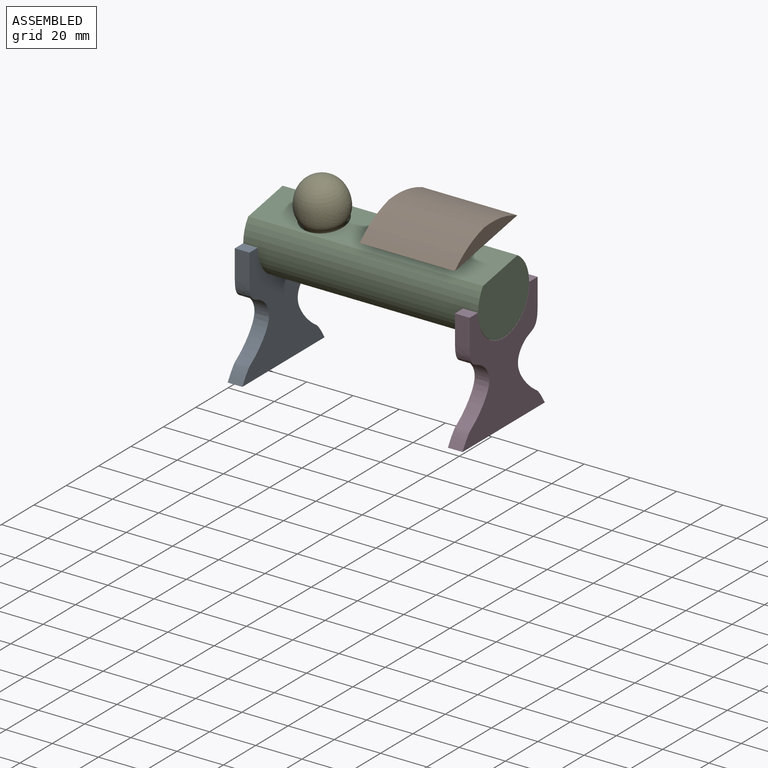
[diagram: assembled view]
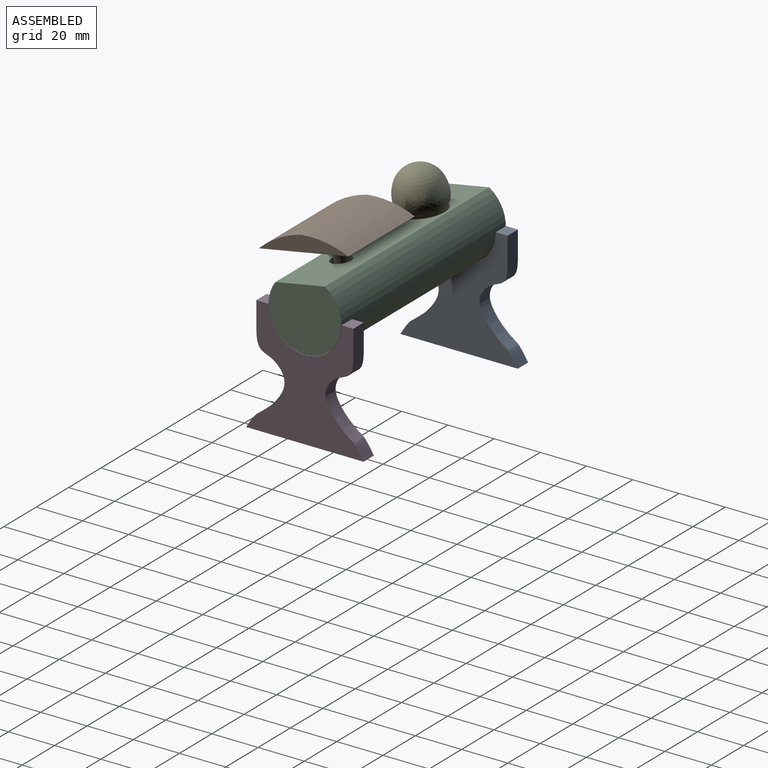
[diagram: assembled view, second angle]
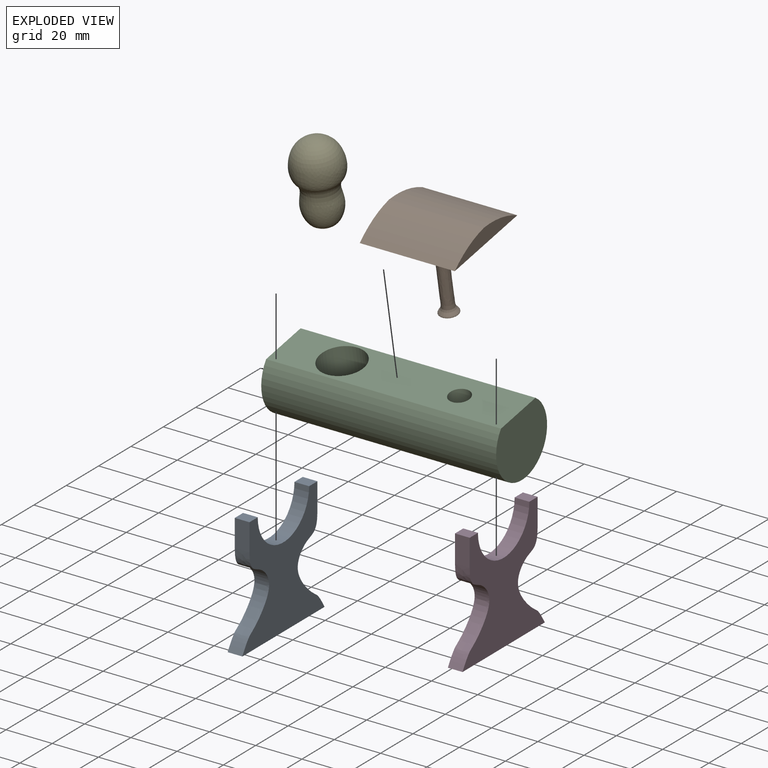
[diagram: exploded view]
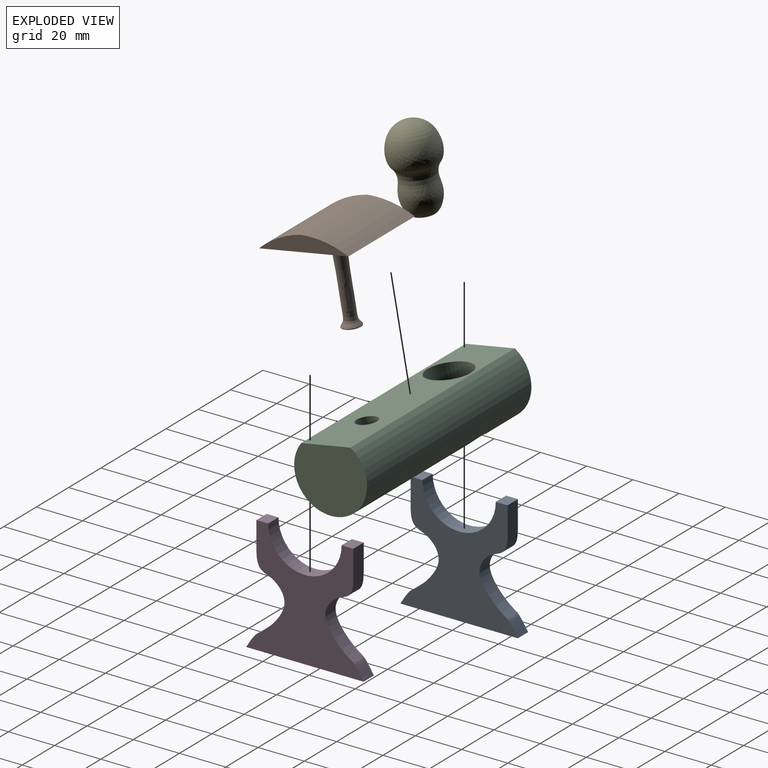
[diagram: exploded view, second angle]
ASSEMBLY  parts=5 mates=3
PART A: 10 faces, bbox 6.4x50.8x50.8 mm
  f0: cylinder r=15.88mm len=31.75mm, axis (-1,0,0), area 316.7mm2, adj f1,f7,f8,f9
  f1: plane 6.35x5.11mm, normal (0,0,1), area 32.5mm2, adj f0,f2,f8,f9
  f2: plane 11.78x6.35mm, normal (0,-1,0), area 74.8mm2, adj f1,f3,f8,f9
  f3: extruded ~39.02x16.56mm, area 322.7mm2, adj f2,f4,f8,f9
  f4: plane 50.8x6.35mm, normal (0,0,-1), area 322.6mm2, adj f3,f5,f8,f9
  f5: extruded ~39.02x16.56mm, area 322.7mm2, adj f4,f6,f8,f9
  f6: plane 11.78x6.35mm, normal (0,1,0), area 74.8mm2, adj f5,f7,f8,f9
  f7: plane 6.35x5.11mm, normal (0,0,1), area 32.5mm2, adj f0,f6,f8,f9
  f8: plane 50.8x50.8mm, normal (1,0,0), area 1329.6mm2, adj f0,f1,f2,f3,f4,f5,f6,f7
  f9: plane 50.8x50.8mm, normal (-1,0,0), area 1329.6mm2, adj f0,f1,f2,f3,f4,f5,f6,f7
PART B: 6 faces, bbox 41.1x39.3x42.3 mm
  f0: revolved ~35.63x12.14mm, area 740.4mm2, adj f2
  f1: plane 39.3x6.68mm, normal (1,0,0), area 169.6mm2, adj f2,f3,f4
  f2: plane 41.1x39.3mm, normal (0,0,-1), area 1499.4mm2, adj f0,f1,f3,f4,f5
  f3: cylinder r=39.76mm len=41.1mm, axis (-1,0,0), area 862.9mm2, adj f1,f2,f4,f5
  f4: cylinder r=39.76mm len=41.1mm, axis (-1,0,0), area 862.9mm2, adj f1,f2,f3,f5
  f5: plane 39.3x6.68mm, normal (-1,0,0), area 169.6mm2, adj f2,f3,f4
PART C: 6 faces, bbox 101.6x31.5x27.2 mm
  f0: plane 101.6x21.67mm, normal (0,0,1), area 1854.2mm2, adj f1,f2,f3,f4,f5
  f1: cylinder r=15.75mm len=101.6mm, axis (-1,0,0), area 7262.5mm2, adj f0,f2,f3,f4,f5
  f2: plane 31.5x27.18mm, normal (1,0,0), area 714.8mm2, adj f0,f1
  f3: plane 31.5x27.18mm, normal (-1,0,0), area 714.8mm2, adj f0,f1
  f4: cylinder r=4.45mm len=27.18mm, axis (0,0,1), area 750.1mm2, adj f0,f1
  f5: cylinder r=9.53mm len=27.18mm, axis (0,0,1), area 1533.3mm2, adj f0,f1
PART D: same geometry as A
PART E: 2 faces, bbox 21.1x21.1x35.9 mm
  f0: revolved ~29.32x21.08mm, area 1703mm2, adj f1
  f1: sphere r=10.16mm, area 422.9mm2, adj f0
PLACE A t=(-50.42,0.07,-51.01)mm fixed
PLACE B rot(axis=(1,0,0),10.4deg) t=(-50.42,8.36,-45.15)mm
PLACE C rot(axis=(1,0,0),10.4deg) t=(-50.42,9.28,-50.17)mm
PLACE D rot(axis=(0,0,1),0deg) t=(44.83,0.07,-51.01)mm fixed
PLACE E rot(axis=(0.09,-0.09,0.99),90.5deg) t=(-25.02,-15.4,-56.42)mm
MATE slider B.f0 <-> C.f4  axis (0,-0.18,0.98) through (25.78,0.22,-1.02)mm
MATE revolute C.f1 <-> D.f0  axis (1,0,0) through (51.18,0.07,-0.21)mm
MATE slider E.f0 <-> C.f5  axis (0,0.18,-0.98) through (-25.02,-1.08,6.03)mm
